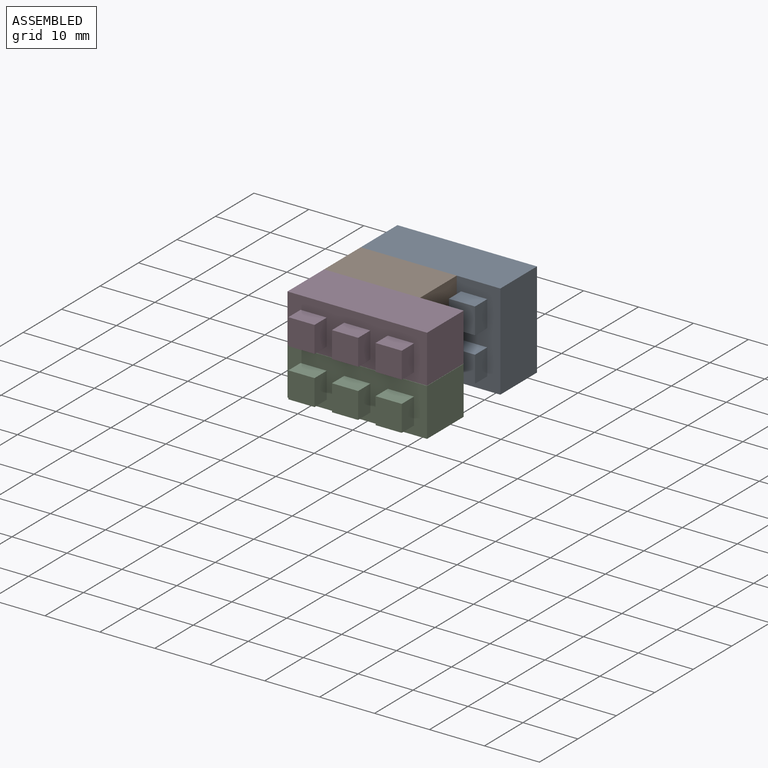
[diagram: assembled view]
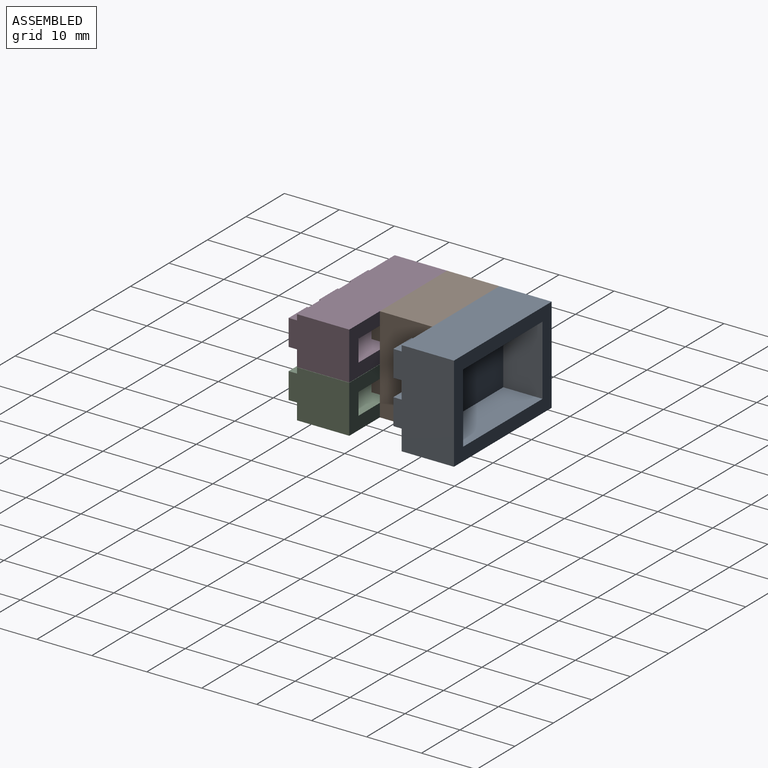
[diagram: assembled view, second angle]
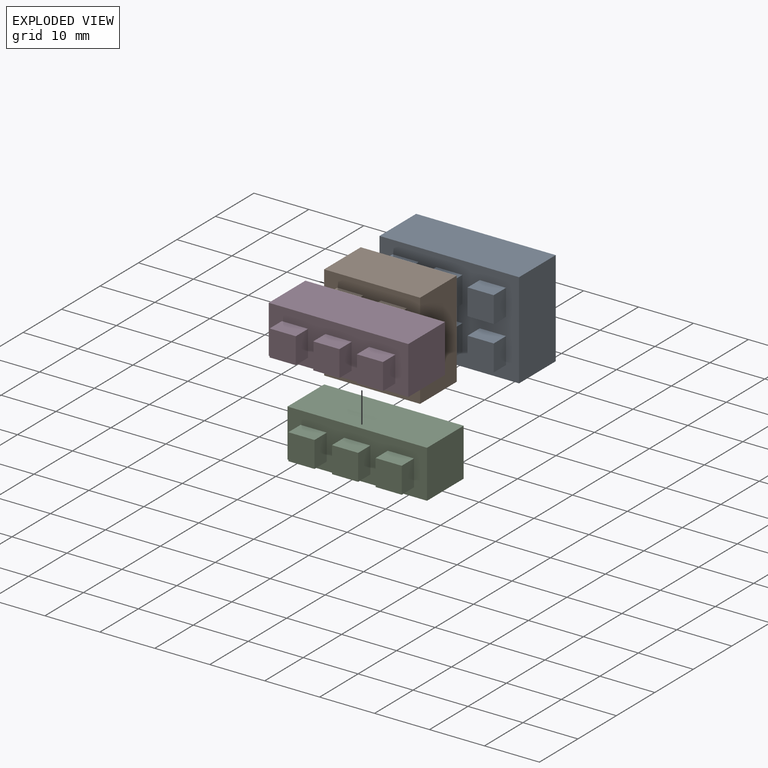
[diagram: exploded view]
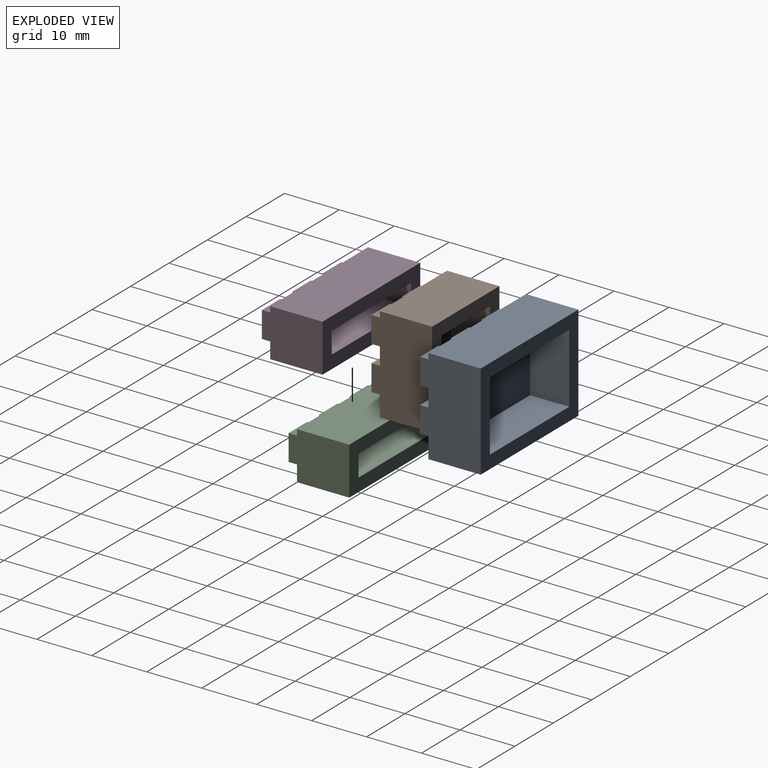
[diagram: exploded view, second angle]
ASSEMBLY  parts=4 mates=3
PART A: 41 faces, bbox 25.4x12.7x17.5 mm
  f0: plane 25.4x17.46mm, normal (0,1,0), area 181.5mm2, adj f27,f28,f29,f30,f37,f38,f39,f40
  f1: plane 4.76x3.18mm, normal (0,0,-1), area 15.1mm2, adj f2,f4,f5,f26
  f2: plane 4.76x3.18mm, normal (1,0,0), area 15.1mm2, adj f1,f3,f5,f26
  f3: plane 4.76x3.18mm, normal (0,0,1), area 15.1mm2, adj f2,f4,f5,f26
  f4: plane 4.76x3.18mm, normal (-1,0,0), area 15.1mm2, adj f1,f3,f5,f26
  f5: plane 4.76x4.76mm, normal (0,-1,0), area 22.7mm2, adj f1,f2,f3,f4
  f6: plane 4.76x3.18mm, normal (0,0,-1), area 15.1mm2, adj f7,f9,f10,f26
  f7: plane 4.76x3.18mm, normal (1,0,0), area 15.1mm2, adj f6,f8,f10,f26
  f8: plane 4.76x3.18mm, normal (0,0,1), area 15.1mm2, adj f7,f9,f10,f26
  f9: plane 4.76x3.18mm, normal (-1,0,0), area 15.1mm2, adj f6,f8,f10,f26
  f10: plane 4.76x4.76mm, normal (0,-1,0), area 22.7mm2, adj f6,f7,f8,f9
  f11: plane 4.76x3.18mm, normal (0,0,-1), area 15.1mm2, adj f12,f14,f15,f26
  f12: plane 4.76x3.18mm, normal (1,0,0), area 15.1mm2, adj f11,f13,f15,f26
  f13: plane 4.76x3.18mm, normal (0,0,1), area 15.1mm2, adj f12,f14,f15,f26
  f14: plane 4.76x3.18mm, normal (-1,0,0), area 15.1mm2, adj f11,f13,f15,f26
  f15: plane 4.76x4.76mm, normal (0,-1,0), area 22.7mm2, adj f11,f12,f13,f14
  f16: plane 4.76x3.18mm, normal (0,0,-1), area 15.1mm2, adj f17,f19,f20,f26
  f17: plane 4.76x3.18mm, normal (1,0,0), area 15.1mm2, adj f16,f18,f20,f26
  f18: plane 4.76x3.18mm, normal (0,0,1), area 15.1mm2, adj f17,f19,f20,f26
  f19: plane 4.76x3.18mm, normal (-1,0,0), area 15.1mm2, adj f16,f18,f20,f26
  f20: plane 4.76x4.76mm, normal (0,-1,0), area 22.7mm2, adj f16,f17,f18,f19
  f21: plane 4.76x3.18mm, normal (0,0,-1), area 15.1mm2, adj f22,f24,f25,f26
  f22: plane 4.76x3.18mm, normal (1,0,0), area 15.1mm2, adj f21,f23,f25,f26
  f23: plane 4.76x3.18mm, normal (0,0,1), area 15.1mm2, adj f22,f24,f25,f26
  f24: plane 4.76x3.18mm, normal (-1,0,0), area 15.1mm2, adj f21,f23,f25,f26
  f25: plane 4.76x4.76mm, normal (0,-1,0), area 22.7mm2, adj f21,f22,f23,f24
  f26: plane 25.4x17.46mm, normal (0,-1,0), area 307.5mm2, adj f1,f2,f3,f4,f6,f7,f8,f9
  f27: plane 25.4x9.53mm, normal (0,0,-1), area 241.9mm2, adj f0,f26,f28,f30
  f28: plane 17.46x9.53mm, normal (1,0,0), area 166.3mm2, adj f0,f26,f27,f29
  f29: plane 25.4x9.53mm, normal (0,0,1), area 241.9mm2, adj f0,f26,f28,f30
  f30: plane 17.46x9.53mm, normal (-1,0,0), area 166.3mm2, adj f0,f26,f27,f29
  f31: plane 4.76x3.18mm, normal (0,0,-1), area 15.1mm2, adj f26,f32,f34,f35
  f32: plane 4.76x3.18mm, normal (1,0,0), area 15.1mm2, adj f26,f31,f33,f35
  f33: plane 4.76x3.18mm, normal (0,0,1), area 15.1mm2, adj f26,f32,f34,f35
  f34: plane 4.76x3.18mm, normal (-1,0,0), area 15.1mm2, adj f26,f31,f33,f35
  f35: plane 4.76x4.76mm, normal (0,-1,0), area 22.7mm2, adj f31,f32,f33,f34
  f36: plane 20.64x12.7mm, normal (0,1,0), area 262.1mm2, adj f37,f38,f39,f40
  f37: plane 20.64x7.14mm, normal (0,0,1), area 147.4mm2, adj f0,f36,f38,f40
  f38: plane 12.7x7.14mm, normal (-1,0,0), area 90.7mm2, adj f0,f36,f37,f39
  f39: plane 20.64x7.14mm, normal (0,0,-1), area 147.4mm2, adj f0,f36,f38,f40
  f40: plane 12.7x7.14mm, normal (1,0,0), area 90.7mm2, adj f0,f36,f37,f39
PART B: 31 faces, bbox 17.5x12.7x17.5 mm
  f0: plane 17.46x17.46mm, normal (0,1,0), area 143.6mm2, adj f17,f18,f19,f20,f27,f28,f29,f30
  f1: plane 4.76x3.18mm, normal (0,0,-1), area 15.1mm2, adj f2,f4,f5,f16
  f2: plane 4.76x3.18mm, normal (1,0,0), area 15.1mm2, adj f1,f3,f5,f16
  f3: plane 4.76x3.18mm, normal (0,0,1), area 15.1mm2, adj f2,f4,f5,f16
  f4: plane 4.76x3.18mm, normal (-1,0,0), area 15.1mm2, adj f1,f3,f5,f16
  f5: plane 4.76x4.76mm, normal (0,-1,0), area 22.7mm2, adj f1,f2,f3,f4
  f6: plane 4.76x3.18mm, normal (0,0,-1), area 15.1mm2, adj f7,f9,f10,f16
  f7: plane 4.76x3.18mm, normal (1,0,0), area 15.1mm2, adj f6,f8,f10,f16
  f8: plane 4.76x3.18mm, normal (0,0,1), area 15.1mm2, adj f7,f9,f10,f16
  f9: plane 4.76x3.18mm, normal (-1,0,0), area 15.1mm2, adj f6,f8,f10,f16
  f10: plane 4.76x4.76mm, normal (0,-1,0), area 22.7mm2, adj f6,f7,f8,f9
  f11: plane 4.76x3.18mm, normal (0,0,-1), area 15.1mm2, adj f12,f14,f15,f16
  f12: plane 4.76x3.18mm, normal (1,0,0), area 15.1mm2, adj f11,f13,f15,f16
  f13: plane 4.76x3.18mm, normal (0,0,1), area 15.1mm2, adj f12,f14,f15,f16
  f14: plane 4.76x3.18mm, normal (-1,0,0), area 15.1mm2, adj f11,f13,f15,f16
  f15: plane 4.76x4.76mm, normal (0,-1,0), area 22.7mm2, adj f11,f12,f13,f14
  f16: plane 17.46x17.46mm, normal (0,-1,0), area 214.2mm2, adj f1,f2,f3,f4,f6,f7,f8,f9
  f17: plane 17.46x9.53mm, normal (0,0,-1), area 166.3mm2, adj f0,f16,f18,f20
  f18: plane 17.46x9.53mm, normal (1,0,0), area 166.3mm2, adj f0,f16,f17,f19
  f19: plane 17.46x9.53mm, normal (0,0,1), area 166.3mm2, adj f0,f16,f18,f20
  f20: plane 17.46x9.53mm, normal (-1,0,0), area 166.3mm2, adj f0,f16,f17,f19
  f21: plane 4.76x3.18mm, normal (0,0,-1), area 15.1mm2, adj f16,f22,f24,f25
  f22: plane 4.76x3.18mm, normal (1,0,0), area 15.1mm2, adj f16,f21,f23,f25
  f23: plane 4.76x3.18mm, normal (0,0,1), area 15.1mm2, adj f16,f22,f24,f25
  f24: plane 4.76x3.18mm, normal (-1,0,0), area 15.1mm2, adj f16,f21,f23,f25
  f25: plane 4.76x4.76mm, normal (0,-1,0), area 22.7mm2, adj f21,f22,f23,f24
  f26: plane 12.7x12.7mm, normal (0,1,0), area 161.3mm2, adj f27,f28,f29,f30
  f27: plane 12.7x7.14mm, normal (0,0,1), area 90.7mm2, adj f0,f26,f28,f30
  f28: plane 12.7x7.14mm, normal (-1,0,0), area 90.7mm2, adj f0,f26,f27,f29
  f29: plane 12.7x7.14mm, normal (0,0,-1), area 90.7mm2, adj f0,f26,f28,f30
  f30: plane 12.7x7.14mm, normal (1,0,0), area 90.7mm2, adj f0,f26,f27,f29
PART C: 26 faces, bbox 25.4x12.7x8.7 mm
  f0: plane 25.4x8.71mm, normal (0,1,0), area 139.8mm2, adj f12,f13,f14,f15,f22,f23,f24,f25
  f1: plane 4.76x3.18mm, normal (0,0,-1), area 15.1mm2, adj f2,f4,f5,f11
  f2: plane 4.76x3.18mm, normal (1,0,0), area 15.1mm2, adj f1,f3,f5,f11
  f3: plane 4.76x3.18mm, normal (0,0,1), area 15.1mm2, adj f2,f4,f5,f11
  f4: plane 4.76x3.18mm, normal (-1,0,0), area 15.1mm2, adj f1,f3,f5,f11
  f5: plane 4.76x4.76mm, normal (0,-1,0), area 22.7mm2, adj f1,f2,f3,f4
  f6: plane 4.76x3.18mm, normal (0,0,-1), area 15.1mm2, adj f7,f9,f10,f11
  f7: plane 4.76x3.18mm, normal (1,0,0), area 15.1mm2, adj f6,f8,f10,f11
  f8: plane 4.76x3.18mm, normal (0,0,1), area 15.1mm2, adj f7,f9,f10,f11
  f9: plane 4.76x3.18mm, normal (-1,0,0), area 15.1mm2, adj f6,f8,f10,f11
  f10: plane 4.76x4.76mm, normal (0,-1,0), area 22.7mm2, adj f6,f7,f8,f9
  f11: plane 25.4x8.71mm, normal (0,-1,0), area 153.2mm2, adj f1,f2,f3,f4,f6,f7,f8,f9
  f12: plane 25.4x9.53mm, normal (0,0,-1), area 241.9mm2, adj f0,f11,f13,f15
  f13: plane 9.53x8.71mm, normal (1,0,0), area 83mm2, adj f0,f11,f12,f14
  f14: plane 25.4x9.53mm, normal (0,0,1), area 241.9mm2, adj f0,f11,f13,f15
  f15: plane 9.53x8.71mm, normal (-1,0,0), area 83mm2, adj f0,f11,f12,f14
  f16: plane 4.76x3.18mm, normal (0,0,-1), area 15.1mm2, adj f11,f17,f19,f20
  f17: plane 4.76x3.18mm, normal (1,0,0), area 15.1mm2, adj f11,f16,f18,f20
  f18: plane 4.76x3.18mm, normal (0,0,1), area 15.1mm2, adj f11,f17,f19,f20
  f19: plane 4.76x3.18mm, normal (-1,0,0), area 15.1mm2, adj f11,f16,f18,f20
  f20: plane 4.76x4.76mm, normal (0,-1,0), area 22.7mm2, adj f16,f17,f18,f19
  f21: plane 20.64x3.95mm, normal (0,1,0), area 81.5mm2, adj f22,f23,f24,f25
  f22: plane 20.64x7.14mm, normal (0,0,1), area 147.4mm2, adj f0,f21,f23,f25
  f23: plane 7.14x3.95mm, normal (-1,0,0), area 28.2mm2, adj f0,f21,f22,f24
  f24: plane 20.64x7.14mm, normal (0,0,-1), area 147.4mm2, adj f0,f21,f23,f25
  f25: plane 7.14x3.95mm, normal (1,0,0), area 28.2mm2, adj f0,f21,f22,f24
PART D: same geometry as C
PLACE A t=(-6.85,0.99,-2.1)mm
PLACE B t=(-10.82,-8.53,-2.1)mm
PLACE C t=(-6.85,-18.06,-6.48)mm
PLACE D t=(-6.85,-18.06,2.27)mm
MATE planar C.f22 <-> B.f6  axis (0,0,1) through (-17.17,-18.06,-8.45)mm
MATE planar B.f0 <-> A.f26  axis (0,1,0) through (-4.47,-8.53,4.25)mm
MATE planar D.f0 <-> B.f16  axis (0,1,0) through (-17.17,-18.06,4.25)mm
